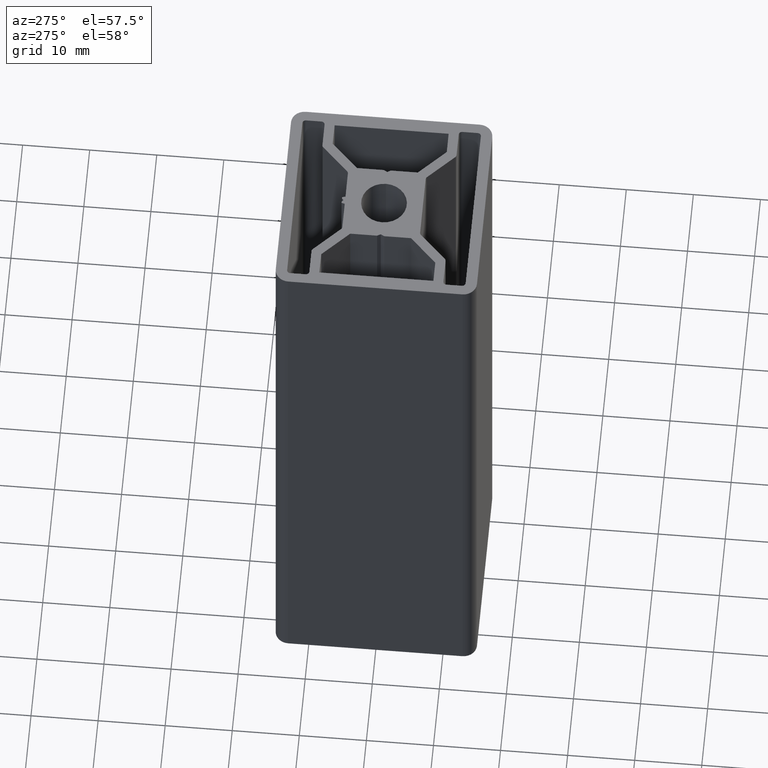
[diagram: clean part render]
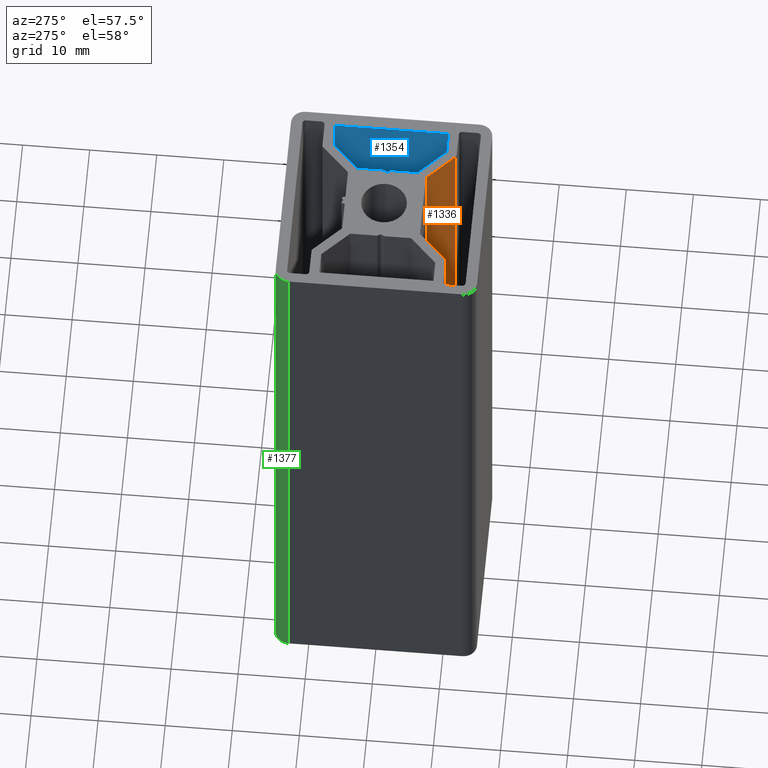
[diagram: same view with three faces highlighted in distinct colors, each labeled with its STEP entity id]
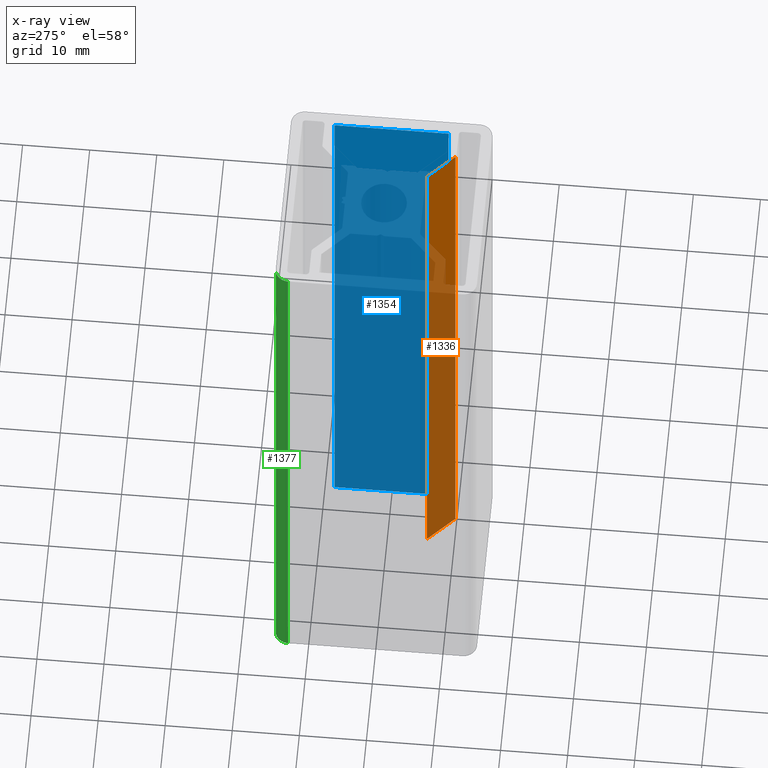
[diagram: x-ray of the same camera — body ghosted, the three highlighted faces saturated]
A machine part, auxiliary view with three faces highlighted in distinct colors.
The next image is the same camera in x-ray (body ghosted, the three faces saturated) — at least one of them is partly hidden behind the body in this view.
Their STEP definitions:

[orange] entity #1336 — the highlighted planar face has unit normal (0.7071, 0.7071, 0).
#119=FACE_OUTER_BOUND('',#187,.T.);
#187=EDGE_LOOP('',(#969,#970,#971,#972));
#292=LINE('',#2024,#443);
#293=LINE('',#2027,#444);
#294=LINE('',#2029,#445);
#295=LINE('',#2030,#446);
#443=VECTOR('',#1640,100.);
#444=VECTOR('',#1643,5.52548338046126);
#445=VECTOR('',#1644,5.52548338046126);
#446=VECTOR('',#1645,100.);
#591=VERTEX_POINT('',#2018);
#593=VERTEX_POINT('',#2022);
#594=VERTEX_POINT('',#2026);
#595=VERTEX_POINT('',#2028);
#748=EDGE_CURVE('',#593,#591,#292,.T.);
#749=EDGE_CURVE('',#591,#594,#293,.T.);
#750=EDGE_CURVE('',#595,#593,#294,.T.);
#751=EDGE_CURVE('',#595,#594,#295,.T.);
#969=ORIENTED_EDGE('',*,*,#749,.F.);
#970=ORIENTED_EDGE('',*,*,#748,.F.);
#971=ORIENTED_EDGE('',*,*,#750,.F.);
#972=ORIENTED_EDGE('',*,*,#751,.T.);
#1280=PLANE('',#1428);
#1336=ADVANCED_FACE('',(#119),#1280,.F.);
#1428=AXIS2_PLACEMENT_3D('',#2025,#1641,#1642);
#1640=DIRECTION('',(0.,0.,1.));
#1641=DIRECTION('center_axis',(0.707106782223408,0.707106780149687,0.));
#1642=DIRECTION('ref_axis',(-0.707106780149687,0.707106782223408,0.));
#1643=DIRECTION('',(0.707106780149687,-0.707106782223408,0.));
#1644=DIRECTION('',(-0.707106780149687,0.707106782223408,0.));
#1645=DIRECTION('',(0.,0.,1.));
#2018=CARTESIAN_POINT('',(5.09791848730593,-5.94644661145033,100.));
#2022=CARTESIAN_POINT('',(5.09791848730593,-5.94644661145033,0.));
#2024=CARTESIAN_POINT('',(5.09791848730593,-5.94644661145033,0.));
#2025=CARTESIAN_POINT('Origin',(9.0050252492345,-9.85355338483721,0.));
#2026=CARTESIAN_POINT('',(9.0050252492345,-9.85355338483721,100.));
#2027=CARTESIAN_POINT('',(4.29038059722143,-5.13890871899758,100.));
#2028=CARTESIAN_POINT('',(9.0050252492345,-9.85355338483721,0.));
#2029=CARTESIAN_POINT('',(4.29038059722143,-5.13890871899758,0.));
#2030=CARTESIAN_POINT('',(9.0050252492345,-9.85355338483721,0.));

[blue] entity #1354 — the highlighted planar face has unit normal (1, 0, 0).
#137=FACE_OUTER_BOUND('',#205,.T.);
#205=EDGE_LOOP('',(#1041,#1042,#1043,#1044));
#331=LINE('',#2131,#482);
#333=LINE('',#2135,#484);
#334=LINE('',#2137,#485);
#335=LINE('',#2138,#486);
#482=VECTOR('',#1743,100.);
#484=VECTOR('',#1747,16.9999999999965);
#485=VECTOR('',#1748,100.);
#486=VECTOR('',#1749,16.9999999999965);
#628=VERTEX_POINT('',#2128);
#629=VERTEX_POINT('',#2130);
#630=VERTEX_POINT('',#2134);
#631=VERTEX_POINT('',#2136);
#801=EDGE_CURVE('',#628,#629,#331,.T.);
#803=EDGE_CURVE('',#630,#628,#333,.T.);
#804=EDGE_CURVE('',#630,#631,#334,.T.);
#805=EDGE_CURVE('',#629,#631,#335,.T.);
#1041=ORIENTED_EDGE('',*,*,#803,.F.);
#1042=ORIENTED_EDGE('',*,*,#804,.T.);
#1043=ORIENTED_EDGE('',*,*,#805,.F.);
#1044=ORIENTED_EDGE('',*,*,#801,.F.);
#1291=PLANE('',#1460);
#1354=ADVANCED_FACE('',(#137),#1291,.F.);
#1460=AXIS2_PLACEMENT_3D('',#2133,#1745,#1746);
#1743=DIRECTION('',(0.,0.,-1.));
#1745=DIRECTION('center_axis',(1.,0.,0.));
#1746=DIRECTION('ref_axis',(0.,1.,0.));
#1747=DIRECTION('',(0.,-1.,0.));
#1748=DIRECTION('',(0.,0.,-1.));
#1749=DIRECTION('',(0.,1.,0.));
#2128=CARTESIAN_POINT('',(12.999999983797,-8.50000001620154,100.));
#2130=CARTESIAN_POINT('',(12.999999983797,-8.50000001620154,0.));
#2131=CARTESIAN_POINT('',(12.999999983797,-8.50000001620154,0.));
#2133=CARTESIAN_POINT('Origin',(12.999999983797,-8.50000001620154,0.));
#2134=CARTESIAN_POINT('',(12.999999983797,8.49999998379494,100.));
#2135=CARTESIAN_POINT('',(12.999999983797,-4.25000000790603,100.));
#2136=CARTESIAN_POINT('',(12.999999983797,8.49999998379494,0.));
#2137=CARTESIAN_POINT('',(12.999999983797,8.49999998379494,0.));
#2138=CARTESIAN_POINT('',(12.999999983797,-4.25000000790603,0.));

[green] entity #1377 — the highlighted cylindrical surface (edge-blend (fillet) strip) has radius 2 mm, axis along (0, 0, 1).
#70=CIRCLE('',#1492,2.00000000847673);
#71=CIRCLE('',#1493,2.00000000847673);
#94=CYLINDRICAL_SURFACE('',#1491,2.00000000847673);
#160=FACE_OUTER_BOUND('',#229,.T.);
#229=EDGE_LOOP('',(#1131,#1132,#1133,#1134));
#380=LINE('',#2233,#531);
#391=LINE('',#2268,#542);
#531=VECTOR('',#1830,100.);
#542=VECTOR('',#1865,100.);
#660=VERTEX_POINT('',#2226);
#663=VERTEX_POINT('',#2231);
#674=VERTEX_POINT('',#2265);
#675=VERTEX_POINT('',#2267);
#852=EDGE_CURVE('',#663,#660,#380,.T.);
#869=EDGE_CURVE('',#675,#674,#391,.T.);
#871=EDGE_CURVE('',#674,#660,#70,.T.);
#872=EDGE_CURVE('',#675,#663,#71,.T.);
#1131=ORIENTED_EDGE('',*,*,#871,.T.);
#1132=ORIENTED_EDGE('',*,*,#852,.F.);
#1133=ORIENTED_EDGE('',*,*,#872,.F.);
#1134=ORIENTED_EDGE('',*,*,#869,.T.);
#1377=ADVANCED_FACE('',(#160),#94,.T.);
#1491=AXIS2_PLACEMENT_3D('',#2270,#1867,#1868);
#1492=AXIS2_PLACEMENT_3D('',#2271,#1869,#1870);
#1493=AXIS2_PLACEMENT_3D('',#2272,#1871,#1872);
#1830=DIRECTION('',(0.,0.,1.));
#1865=DIRECTION('',(0.,0.,1.));
#1867=DIRECTION('center_axis',(0.,0.,1.));
#1868=DIRECTION('ref_axis',(0.,-1.,0.));
#1869=DIRECTION('center_axis',(0.,0.,-1.));
#1870=DIRECTION('ref_axis',(0.,-1.,0.));
#1871=DIRECTION('center_axis',(0.,0.,-1.));
#1872=DIRECTION('ref_axis',(0.,-1.,0.));
#2226=CARTESIAN_POINT('',(-12.9999999915233,14.9999999963232,100.));
#2231=CARTESIAN_POINT('',(-12.9999999915233,14.9999999963232,0.));
#2233=CARTESIAN_POINT('',(-12.9999999915233,14.9999999963232,0.));
#2265=CARTESIAN_POINT('',(-15.,12.9999999870676,100.));
#2267=CARTESIAN_POINT('',(-15.,12.9999999870676,0.));
#2268=CARTESIAN_POINT('',(-15.,12.9999999870676,0.));
#2270=CARTESIAN_POINT('Origin',(-12.9999999915233,12.9999999878465,0.));
#2271=CARTESIAN_POINT('Origin',(-12.9999999915233,12.9999999878465,100.));
#2272=CARTESIAN_POINT('Origin',(-12.9999999915233,12.9999999878465,0.));